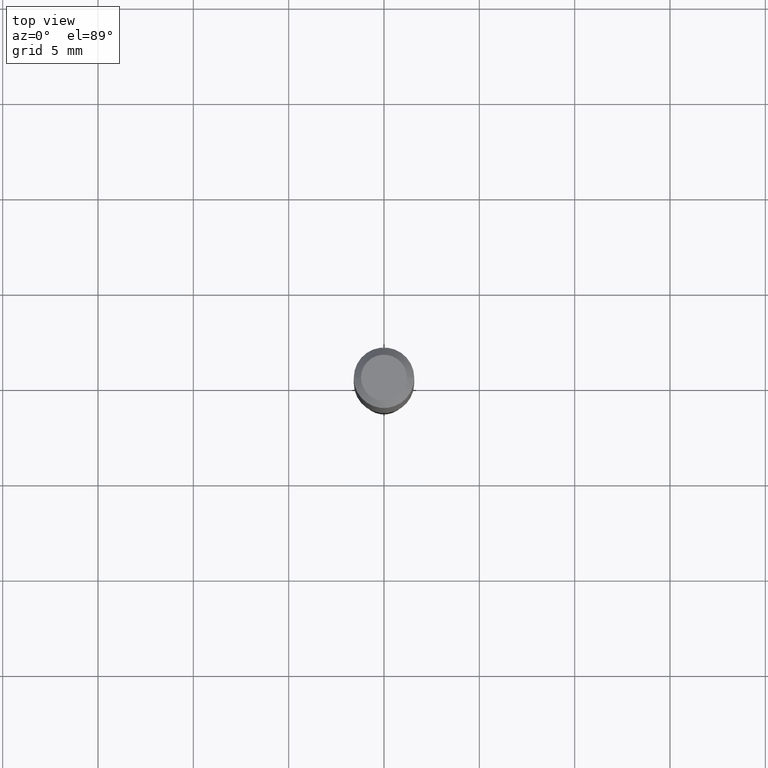
[diagram: clean part render]
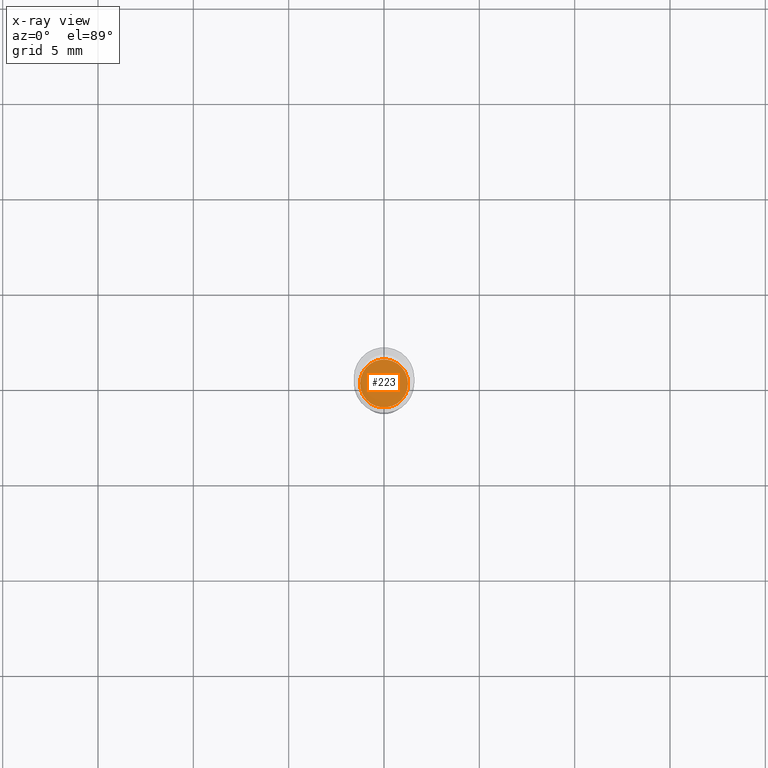
[diagram: x-ray — body ghosted, one internal face saturated and labeled with its STEP entity id]
A machine part, top view, then the same camera in x-ray: the body is ghosted and one INTERNAL B-rep face — a face not visible from any outside direction — is saturated and labeled: STEP entity #223.
In plain terms, the highlighted planar face has unit normal (-0, 0, 1).
Its self-contained STEP definition (entity closure, byte-faithful):
#26 = EDGE_LOOP ( 'NONE', ( #439, #150 ) ) ;
#77 = DIRECTION ( 'NONE',  ( 1.000000000000000000, -6.982962677686264344E-15, 0.000000000000000000 ) ) ;
#82 = CARTESIAN_POINT ( 'NONE',  ( 0.04950000000000000233, -2.789693589735671960E-15, -0.7000000000000000666 ) ) ;
#84 = DIRECTION ( 'NONE',  ( 1.000000000000000000, -6.982962677686265922E-15, 4.876176775795935793E-29 ) ) ;
#85 = DIRECTION ( 'NONE',  ( -2.438088387897960049E-29, 3.491481338843145188E-15, 1.000000000000000000 ) ) ;
#109 = CARTESIAN_POINT ( 'NONE',  ( 1.711828164329595562E-29, -2.444036937190202026E-15, -0.7000000000000000666 ) ) ;
#122 = DIRECTION ( 'NONE',  ( -2.445468806185136597E-29, 3.491481338843145583E-15, 1.000000000000000000 ) ) ;
#150 = ORIENTED_EDGE ( 'NONE', *, *, #164, .F. ) ;
#164 = EDGE_CURVE ( 'NONE', #278, #352, #355, .T. ) ;
#178 = AXIS2_PLACEMENT_3D ( 'NONE', #109, #396, #77 ) ;
#223 = ADVANCED_FACE ( 'NONE', ( #437 ), #330, .F. ) ;
#268 = CARTESIAN_POINT ( 'NONE',  ( 1.711828164329595562E-29, -2.444036937190202026E-15, -0.7000000000000000666 ) ) ;
#269 = EDGE_CURVE ( 'NONE', #352, #278, #416, .T. ) ;
#278 = VERTEX_POINT ( 'NONE', #335 ) ;
#330 = PLANE ( 'NONE',  #338 ) ;
#335 = CARTESIAN_POINT ( 'NONE',  ( -0.04950000000000000233, -2.089669055814840921E-15, -0.7000000000000000666 ) ) ;
#338 = AXIS2_PLACEMENT_3D ( 'NONE', #404, #85, #84 ) ;
#352 = VERTEX_POINT ( 'NONE', #82 ) ;
#355 = CIRCLE ( 'NONE', #178, 0.04950000000000000233 ) ;
#367 = DIRECTION ( 'NONE',  ( 1.000000000000000000, -6.982962677686264344E-15, 0.000000000000000000 ) ) ;
#396 = DIRECTION ( 'NONE',  ( -2.445468806185136597E-29, 3.491481338843145583E-15, 1.000000000000000000 ) ) ;
#404 = CARTESIAN_POINT ( 'NONE',  ( 1.711828164329595562E-29, -2.444036937190202026E-15, -0.7000000000000000666 ) ) ;
#416 = CIRCLE ( 'NONE', #425, 0.04950000000000000233 ) ;
#425 = AXIS2_PLACEMENT_3D ( 'NONE', #268, #122, #367 ) ;
#437 = FACE_OUTER_BOUND ( 'NONE', #26, .T. ) ;
#439 = ORIENTED_EDGE ( 'NONE', *, *, #269, .F. ) ;